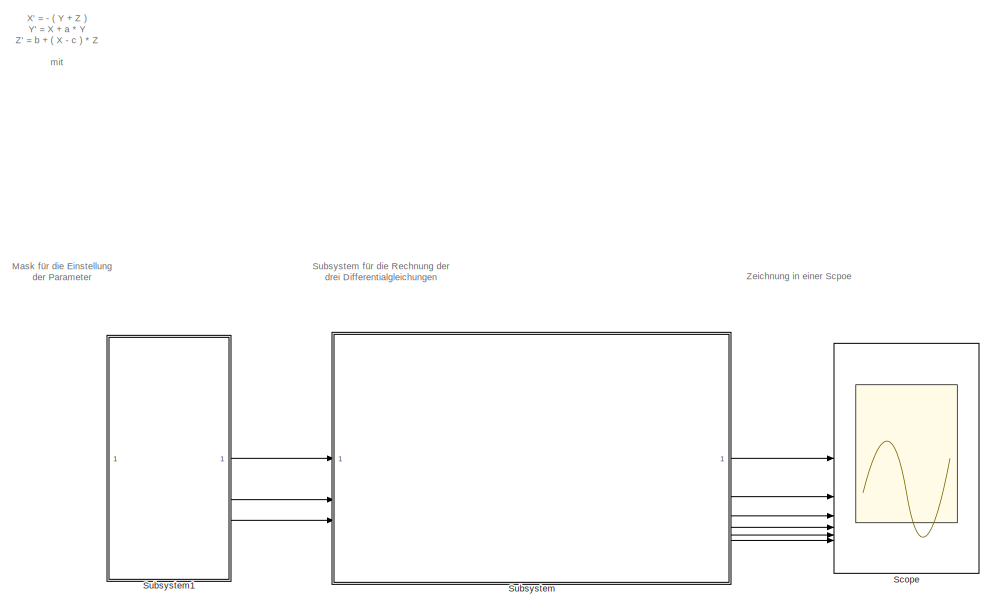
[diagram: root canvas - part 1/2, full width, top band]
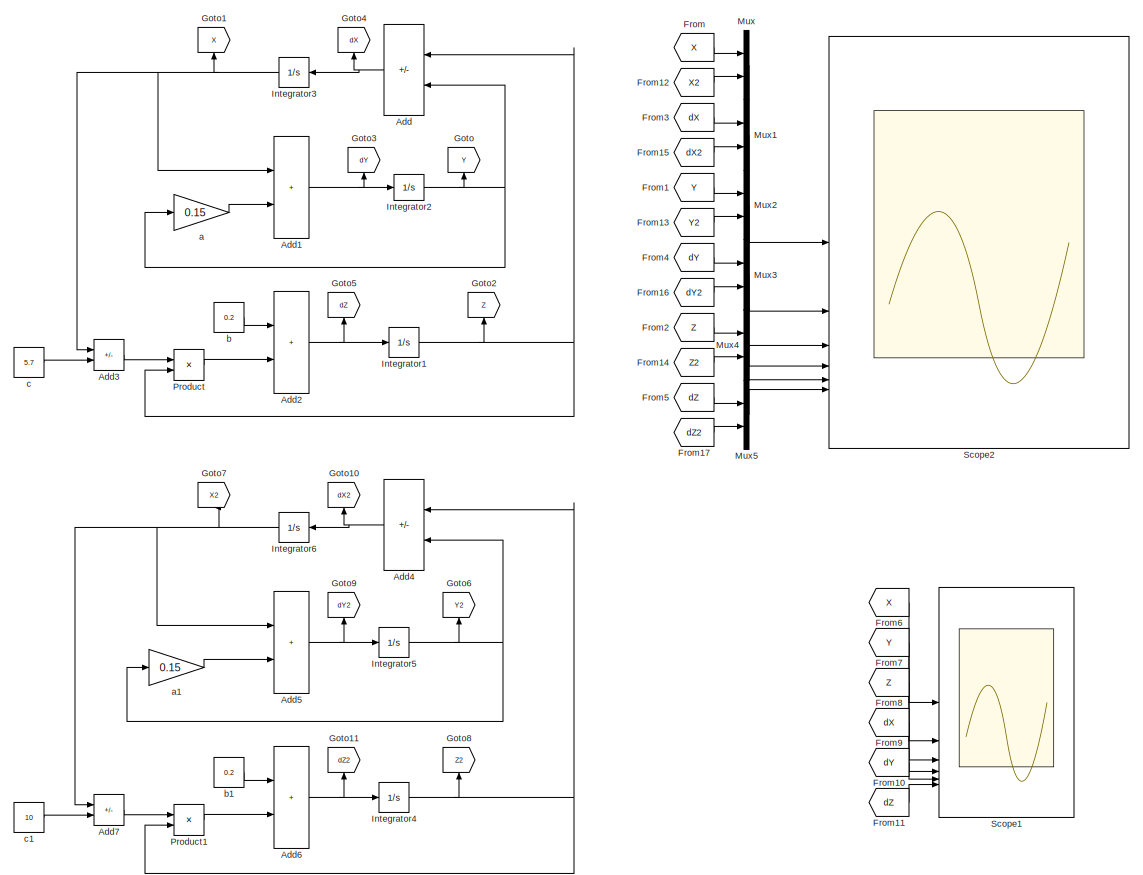
[diagram: root canvas - part 2/2, full width, bottom band]
MODEL slx_9fa8c53c2a62
KIND model
CONFIG AbsTol = auto
CONFIG EnableMultiTasking = off
CONFIG FixedStep = auto
CONFIG MaxStep = 2e-4
CONFIG MinStep = auto
CONFIG RelTol = 1e-3
CONFIG SampleTimeConstraint = Unconstrained
CONFIG SolverName = VariableStepAuto
CONFIG StartTime = 0.0
CONFIG StopTime = 150
BLOCK [Sum] Add
  IconShape = rectangular
  Inputs = --
  NameLocation = top
BLOCK [Sum] Add1
  IconShape = rectangular
BLOCK [Sum] Add2
  IconShape = rectangular
BLOCK [Sum] Add3
  IconShape = rectangular
  Inputs = +-
BLOCK [Sum] Add4
  IconShape = rectangular
  Inputs = --
  NameLocation = top
BLOCK [Sum] Add5
  IconShape = rectangular
BLOCK [Sum] Add6
  IconShape = rectangular
BLOCK [Sum] Add7
  IconShape = rectangular
  Inputs = +-
BLOCK [From] From
  GotoTag = X
BLOCK [From] From1
  GotoTag = Y
BLOCK [From] From10
  GotoTag = dY
BLOCK [From] From11
  GotoTag = dZ
BLOCK [From] From12
  GotoTag = X2
BLOCK [From] From13
  GotoTag = Y2
BLOCK [From] From14
  GotoTag = Z2
BLOCK [From] From15
  GotoTag = dX2
BLOCK [From] From16
  GotoTag = dY2
BLOCK [From] From17
  GotoTag = dZ2
BLOCK [From] From2
  GotoTag = Z
BLOCK [From] From3
  GotoTag = dX
BLOCK [From] From4
  GotoTag = dY
BLOCK [From] From5
  GotoTag = dZ
BLOCK [From] From6
  GotoTag = X
BLOCK [From] From7
  GotoTag = Y
BLOCK [From] From8
  GotoTag = Z
BLOCK [From] From9
  GotoTag = dX
BLOCK [Goto] Goto
  GotoTag = Y
  NameLocation = right
BLOCK [Goto] Goto1
  GotoTag = X
  NameLocation = right
BLOCK [Goto] Goto10
  GotoTag = dX2
  NameLocation = right
BLOCK [Goto] Goto11
  GotoTag = dZ2
  NameLocation = right
BLOCK [Goto] Goto2
  GotoTag = Z
  NameLocation = right
BLOCK [Goto] Goto3
  GotoTag = dY
  NameLocation = right
BLOCK [Goto] Goto4
  GotoTag = dX
  NameLocation = right
BLOCK [Goto] Goto5
  GotoTag = dZ
  NameLocation = right
BLOCK [Goto] Goto6
  GotoTag = Y2
  NameLocation = right
BLOCK [Goto] Goto7
  GotoTag = X2
  NameLocation = right
BLOCK [Goto] Goto8
  GotoTag = Z2
  NameLocation = right
BLOCK [Goto] Goto9
  GotoTag = dY2
  NameLocation = right
BLOCK [Integrator] Integrator1
BLOCK [Integrator] Integrator2
BLOCK [Integrator] Integrator3
  NameLocation = top
BLOCK [Integrator] Integrator4
BLOCK [Integrator] Integrator5
BLOCK [Integrator] Integrator6
  NameLocation = top
BLOCK [Mux] Mux
  DisplayOption = bar
  Inputs = 2
BLOCK [Mux] Mux1
  DisplayOption = bar
  Inputs = 2
BLOCK [Mux] Mux2
  DisplayOption = bar
  Inputs = 2
BLOCK [Mux] Mux3
  DisplayOption = bar
  Inputs = 2
BLOCK [Mux] Mux4
  DisplayOption = bar
  Inputs = 2
BLOCK [Mux] Mux5
  DisplayOption = bar
  Inputs = 2
BLOCK [Product] Product
BLOCK [Product] Product1
BLOCK [Scope] Scope
  Floating = off
  NumInputPorts = 6
  ScopeSpecificationString = Simulink.scopes.TimeScopeBlockCfg('CurrentConfiguration', extmgr.ConfigurationSet(extmgr.Configuration('Core','General UI',true),extmgr.Configuration('Core','Source UI',true),extmgr.Configuration('Sources','WiredSimulink',true,'DataLoggingVariableName','ScopeData1'),extmgr.Configuration('Visuals','Time Domain',true,'SerializedDisplays',{struct('MinYLimReal','-31.11973','MaxYLimReal','29.2698','YLa...<+5801ch>
BLOCK [Scope] Scope1
  Floating = off
  NumInputPorts = 6
  ScopeSpecificationString = Simulink.scopes.TimeScopeBlockCfg('CurrentConfiguration', extmgr.ConfigurationSet(extmgr.Configuration('Core','General UI',true),extmgr.Configuration('Core','Source UI',true),extmgr.Configuration('Sources','WiredSimulink',true,'DataLoggingVariableName','ScopeData1'),extmgr.Configuration('Visuals','Time Domain',true,'SerializedDisplays',{struct('MinYLimReal','-31.11973','MaxYLimReal','29.26979','YL...<+2267ch>
BLOCK [Scope] Scope2
  Floating = off
  NumInputPorts = 6
  ScopeSpecificationString = Simulink.scopes.TimeScopeBlockCfg('CurrentConfiguration', extmgr.ConfigurationSet(extmgr.Configuration('Core','General UI',true),extmgr.Configuration('Core','Source UI',true),extmgr.Configuration('Sources','WiredSimulink',true),extmgr.Configuration('Visuals','Time Domain',true,'SerializedDisplays',{struct('MinYLimReal','-18.57012','MaxYLimReal','21.27926','YLabelReal','','MinYLimMag','0.00000','Ma...<+5936ch>
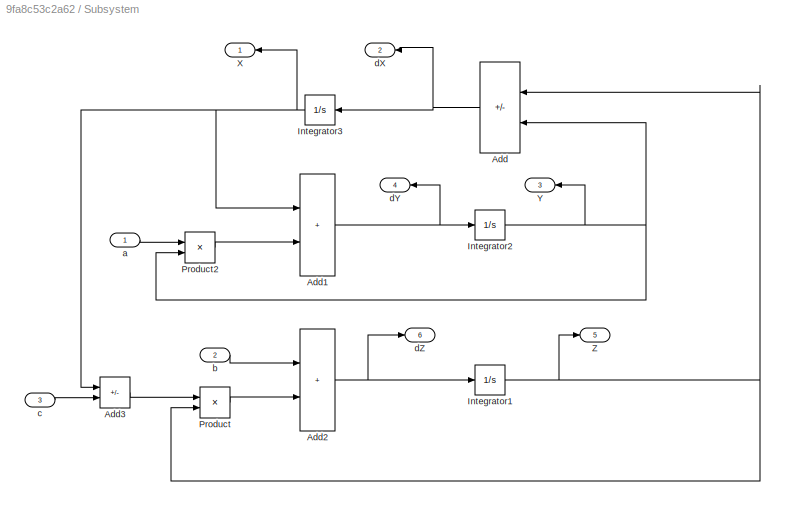
BLOCK [SubSystem] Subsystem
BLOCK [Sum] Subsystem/Add
  IconShape = rectangular
  Inputs = --
  NameLocation = top
BLOCK [Sum] Subsystem/Add1
  IconShape = rectangular
BLOCK [Sum] Subsystem/Add2
  IconShape = rectangular
BLOCK [Sum] Subsystem/Add3
  IconShape = rectangular
  Inputs = +-
BLOCK [Integrator] Subsystem/Integrator1
BLOCK [Integrator] Subsystem/Integrator2
BLOCK [Integrator] Subsystem/Integrator3
  NameLocation = top
BLOCK [Product] Subsystem/Product
BLOCK [Product] Subsystem/Product2
BLOCK [Outport] Subsystem/X
  NameLocation = top
BLOCK [Outport] Subsystem/Y
  NameLocation = top
  Port = 3
BLOCK [Outport] Subsystem/Z
  Port = 5
BLOCK [Inport] Subsystem/a
BLOCK [Inport] Subsystem/b
  Port = 2
BLOCK [Inport] Subsystem/c
  Port = 3
BLOCK [Outport] Subsystem/dX
  NameLocation = top
  Port = 2
BLOCK [Outport] Subsystem/dY
  NameLocation = top
  Port = 4
BLOCK [Outport] Subsystem/dZ
  Port = 6
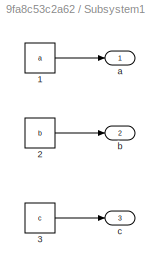
BLOCK [SubSystem] Subsystem1
BLOCK [Constant] Subsystem1/1
  Value = a
BLOCK [Constant] Subsystem1/2
  Value = b
BLOCK [Constant] Subsystem1/3
  Value = c
BLOCK [Outport] Subsystem1/a
BLOCK [Outport] Subsystem1/b
  Port = 2
BLOCK [Outport] Subsystem1/c
  Port = 3
BLOCK [Gain] a
  Gain = 0.15
BLOCK [Gain] a1
  Gain = 0.15
BLOCK [Constant] b
  Value = 0.2
BLOCK [Constant] b1
  Value = 0.2
BLOCK [Constant] c
  Value = 5.7
BLOCK [Constant] c1
  Value = 10
ANNOTATION (root): Mask für die Einstellung der Parameter
ANNOTATION (root): Subsystem für die Rechnung der drei Differentialgleichungen
ANNOTATION (root): X' = - ( Y + Z ) Y' = X + a * Y Z' = b + ( X - c ) * Z mit Parameterset 1 : a = 0.15 b = 0.20 c = 10 Parameterset 2 : a = 0.20 b = 0.20 c = 8 (Parameter kann man selbst in Mask einstellen)
ANNOTATION (root): Zeichnung in einer Scpoe
NET Add1:1 -> Goto3:1, Integrator2:1
NET Add2:1 -> Goto5:1, Integrator1:1
LINE Add3:1 -> Product:1
NET Add4:1 -> Goto10:1, Integrator6:1
NET Add5:1 -> Goto9:1, Integrator5:1
NET Add6:1 -> Goto11:1, Integrator4:1
LINE Add7:1 -> Product1:1
NET Add:1 -> Goto4:1, Integrator3:1
LINE From10:1 -> Scope1:5
LINE From11:1 -> Scope1:6
LINE From12:1 -> Mux:2
LINE From13:1 -> Mux2:2
LINE From14:1 -> Mux4:2
LINE From15:1 -> Mux1:2
LINE From16:1 -> Mux3:2
LINE From17:1 -> Mux5:2
LINE From1:1 -> Mux2:1
LINE From2:1 -> Mux4:1
LINE From3:1 -> Mux1:1
LINE From4:1 -> Mux3:1
LINE From5:1 -> Mux5:1
LINE From6:1 -> Scope1:1
LINE From7:1 -> Scope1:2
LINE From8:1 -> Scope1:3
LINE From9:1 -> Scope1:4
LINE From:1 -> Mux:1
NET Integrator1:1 -> Add:1, Goto2:1, Product:2
NET Integrator2:1 -> Add:2, Goto:1, a:1
NET Integrator3:1 -> Add1:1, Add3:1, Goto1:1
NET Integrator4:1 -> Add4:1, Goto8:1, Product1:2
NET Integrator5:1 -> Add4:2, Goto6:1, a1:1
NET Integrator6:1 -> Add5:1, Add7:1, Goto7:1
LINE Mux1:1 -> Scope2:2
LINE Mux2:1 -> Scope2:3
LINE Mux3:1 -> Scope2:4
LINE Mux4:1 -> Scope2:5
LINE Mux5:1 -> Scope2:6
LINE Mux:1 -> Scope2:1
LINE Product1:1 -> Add6:2
LINE Product:1 -> Add2:2
NET Subsystem/Add1:1 -> Subsystem/Integrator2:1, Subsystem/dY:1
NET Subsystem/Add2:1 -> Subsystem/Integrator1:1, Subsystem/dZ:1
LINE Subsystem/Add3:1 -> Subsystem/Product:1
NET Subsystem/Add:1 -> Subsystem/Integrator3:1, Subsystem/dX:1
NET Subsystem/Integrator1:1 -> Subsystem/Add:1, Subsystem/Product:2, Subsystem/Z:1
NET Subsystem/Integrator2:1 -> Subsystem/Add:2, Subsystem/Product2:2, Subsystem/Y:1
NET Subsystem/Integrator3:1 -> Subsystem/Add1:1, Subsystem/Add3:1, Subsystem/X:1
LINE Subsystem/Product2:1 -> Subsystem/Add1:2
LINE Subsystem/Product:1 -> Subsystem/Add2:2
LINE Subsystem/a:1 -> Subsystem/Product2:1
LINE Subsystem/b:1 -> Subsystem/Add2:1
LINE Subsystem/c:1 -> Subsystem/Add3:2
LINE Subsystem1/1:1 -> Subsystem1/a:1
LINE Subsystem1/2:1 -> Subsystem1/b:1
LINE Subsystem1/3:1 -> Subsystem1/c:1
LINE Subsystem1:1 -> Subsystem:1
LINE Subsystem1:2 -> Subsystem:2
LINE Subsystem1:3 -> Subsystem:3
LINE Subsystem:1 -> Scope:1
LINE Subsystem:2 -> Scope:2
LINE Subsystem:3 -> Scope:3
LINE Subsystem:4 -> Scope:4
LINE Subsystem:5 -> Scope:5
LINE Subsystem:6 -> Scope:6
LINE a1:1 -> Add5:2
LINE a:1 -> Add1:2
LINE b1:1 -> Add6:1
LINE b:1 -> Add2:1
LINE c1:1 -> Add7:2
LINE c:1 -> Add3:2
note: NET lines group one-source signal fan-out (src -> all destinations, sorted); 1:1 wires keep LINE
